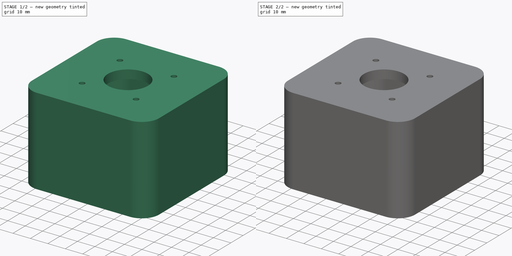
[diagram: build sequence overview — one tinted view per stage of 2, left to right]
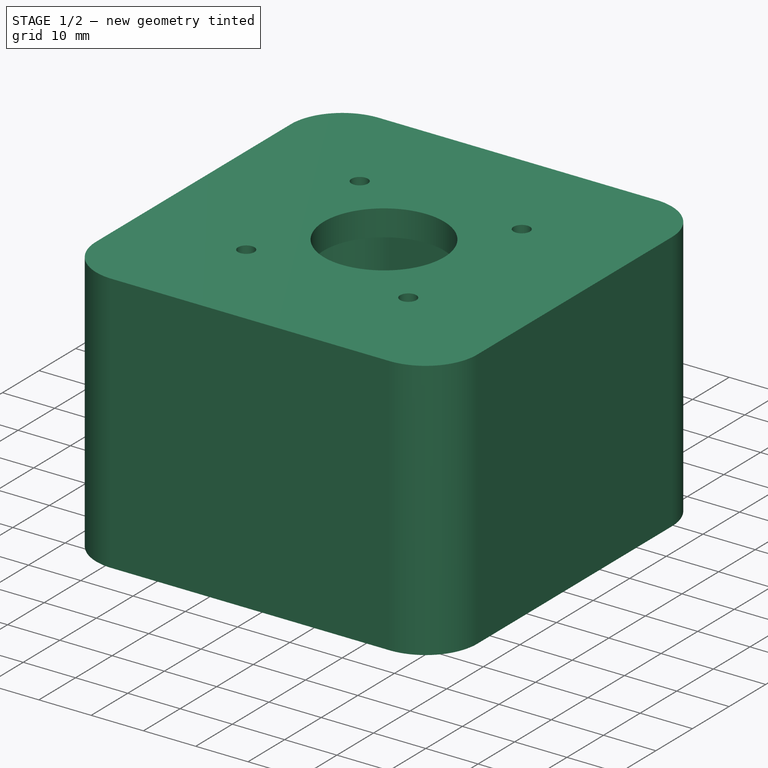
[diagram: stage 1 of 2 — iso view after this stage's code; geometry added in this stage tinted green]
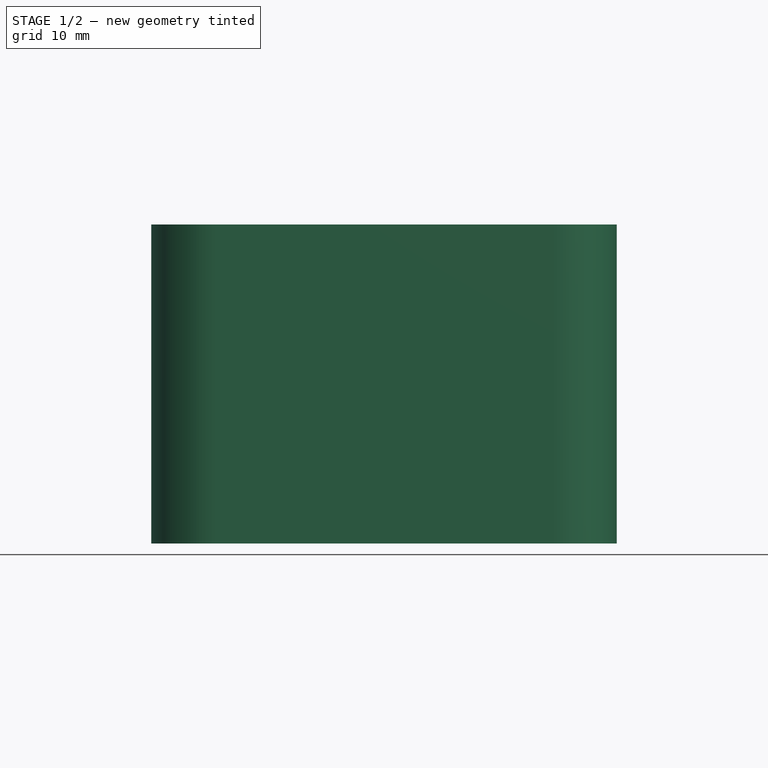
[diagram: stage 1 of 2 — front view after this stage's code; geometry added in this stage tinted green]
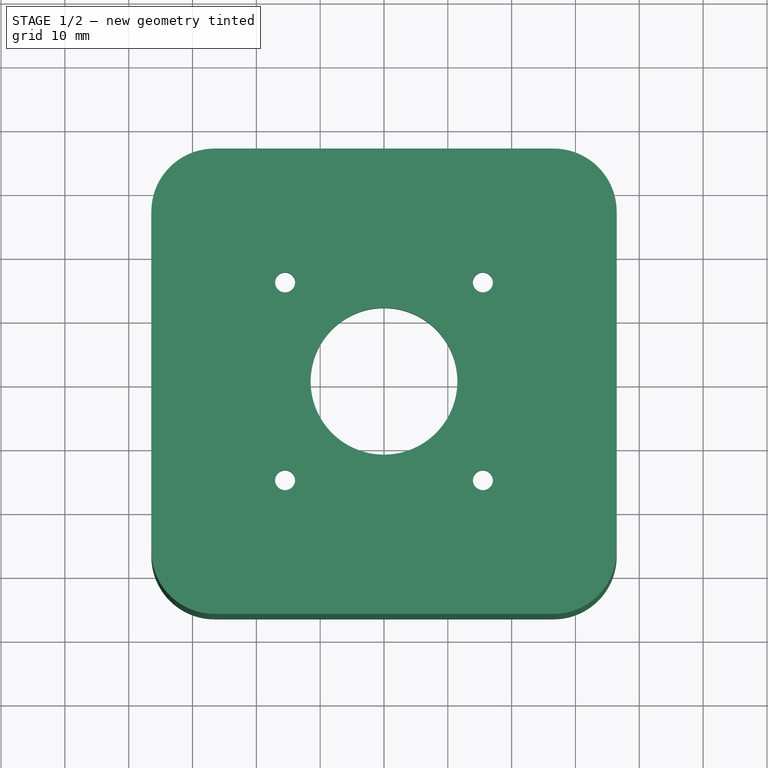
[diagram: stage 1 of 2 — top view after this stage's code; geometry added in this stage tinted green]
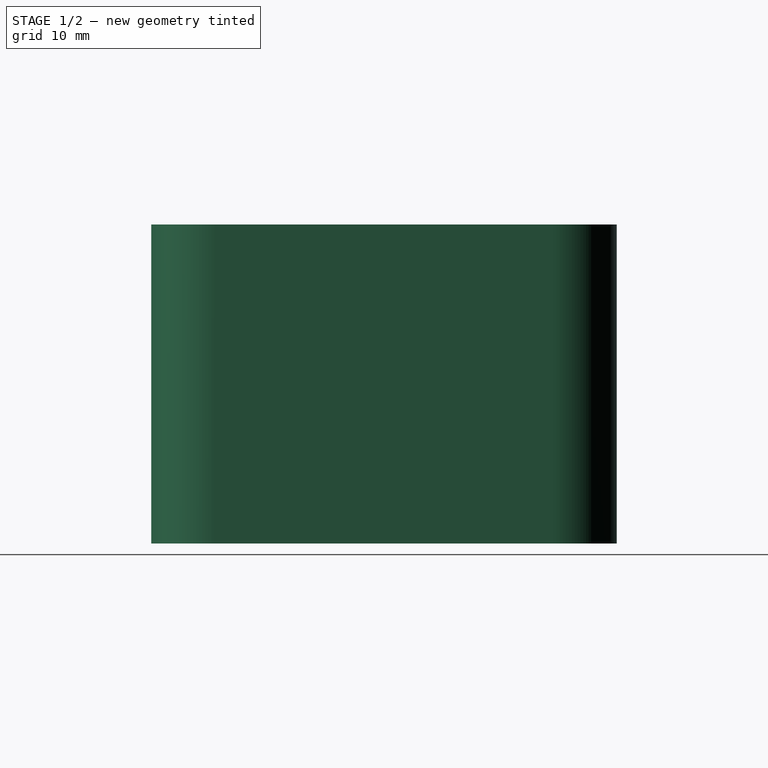
[diagram: stage 1 of 2 — right view after this stage's code; geometry added in this stage tinted green]
FCSTD DOCUMENT  (FreeCAD 0.16R)
Label: thrust_bearing_mount
License: All rights reserved
LicenseURL: http://en.wikipedia.org/wiki/All_rights_reserved
objects: Sketcher::SketchObject×3, PartDesign::Pocket×2, PartDesign::Pad×1
note: 9 computed .brp shape members not serialized (recipe doc carries the construction recipe); baked Part::Feature solids carry a one-line shape summary decoded from their .brp

FEATURE [Sketcher::SketchObject] Sketch
  sketch-geometry (17):
    g0: LineSegment StartX=-26.5555 StartY=36.46 StartZ=0 EndX=26.5555 EndY=36.46 EndZ=0
    g1: LineSegment StartX=36.46 StartY=26.5555 StartZ=0 EndX=36.46 EndY=-26.5555 EndZ=0
    g2: LineSegment StartX=26.5555 StartY=-36.46 StartZ=0 EndX=-26.5555 EndY=-36.46 EndZ=0
    g3: LineSegment StartX=-36.46 StartY=-26.5555 StartZ=0 EndX=-36.46 EndY=26.5555 EndZ=0
    g4: LineSegment [constr] StartX=-15.5 StartY=15.5 StartZ=0 EndX=15.5 EndY=15.5 EndZ=0
    g5: LineSegment [constr] StartX=15.5 StartY=15.5 StartZ=0 EndX=15.5 EndY=-15.5 EndZ=0
    g6: LineSegment [constr] StartX=15.5 StartY=-15.5 StartZ=0 EndX=-15.5 EndY=-15.5 EndZ=0
    g7: LineSegment [constr] StartX=-15.5 StartY=-15.5 StartZ=0 EndX=-15.5 EndY=15.5 EndZ=0
    g8: Circle CenterX=15.5 CenterY=15.5 CenterZ=0 NormalX=0 NormalY=0 NormalZ=1 Radius=1.56961
    g9: Circle CenterX=-15.5 CenterY=15.5 CenterZ=0 NormalX=0 NormalY=0 NormalZ=1 Radius=1.56961
    g10: Circle CenterX=15.5 CenterY=-15.5 CenterZ=0 NormalX=0 NormalY=0 NormalZ=1 Radius=1.56961
    g11: Circle CenterX=-15.5 CenterY=-15.5 CenterZ=0 NormalX=0 NormalY=0 NormalZ=1 Radius=1.56961
    g12: ArcOfCircle CenterX=-26.5555 CenterY=26.5555 CenterZ=0 NormalX=0 NormalY=0 NormalZ=1 Radius=9.90445 StartAngle=1.5708 EndAngle=3.14159
    g13: ArcOfCircle CenterX=-26.5555 CenterY=-26.5555 CenterZ=0 NormalX=0 NormalY=0 NormalZ=1 Radius=9.90445 StartAngle=3.14159 EndAngle=4.71239
    g14: ArcOfCircle CenterX=26.5555 CenterY=-26.5555 CenterZ=0 NormalX=0 NormalY=0 NormalZ=1 Radius=9.90445 StartAngle=4.71239 EndAngle=6.28319
    g15: ArcOfCircle CenterX=26.5555 CenterY=26.5555 CenterZ=0 NormalX=0 NormalY=0 NormalZ=1 Radius=9.90445 StartAngle=0 EndAngle=1.5708
    g16: Circle CenterX=0 CenterY=0 CenterZ=0 NormalX=0 NormalY=0 NormalZ=1 Radius=11.5
  constraints (37):
    c: Horizontal(g0)
    c: Horizontal(g2)
    c: Vertical(g1)
    c: Vertical(g3)
    c: Equal(g0,g1)
    c: Coincident(g4,g5)
    c: Coincident(g5,g6)
    c: Coincident(g6,g7)
    c: Coincident(g7,g4)
    c: Horizontal(g4)
    c: Horizontal(g6)
    c: Vertical(g5)
    c: Vertical(g7)
    c: Equal(g4,g5)
    c: Symmetric(g4,g6,g-1)
    c: DistanceX(g4,g4) = 31
    c: Coincident(g8,g4)
    c: Coincident(g9,g4)
    c: Coincident(g10,g5)
    c: Coincident(g11,g6)
    c: Radius(g9) = 1.56961
    c: Equal(g9,g8)
    c: Equal(g9,g10)
    c: Equal(g9,g11)
    c: Tangent(g0,g12) = 1.5708
    c: Tangent(g3,g12) = 1.5708
    c: Tangent(g2,g13) = 1.5708
    c: Tangent(g3,g13) = 1.5708
    c: Tangent(g1,g14) = 1.5708
    c: Tangent(g2,g14) = 1.5708
    c: Tangent(g0,g15) = 1.5708
    c: Tangent(g1,g15) = 1.5708
    c: Symmetric(g15,g13,g-1)
    c: Symmetric(g12,g14,g-1)
    c: Equal(g13,g14)
    c: Coincident(g16,g-1)
    c: Radius(g16) = 11.5
FEATURE [PartDesign::Pad] Pad
  Length = 50
  Length2 = 100
  Sketch = -> Sketch
  Type = 0
FEATURE [Sketcher::SketchObject] Sketch001
  Placement = pos=(0,0,0) rot=(1,0,0;3.14159rad)
  Support = -> Pad [Face14]
  sketch-geometry (8):
    g0: LineSegment StartX=-21.216 StartY=31.5906 StartZ=0 EndX=21.216 EndY=31.5906 EndZ=0
    g1: LineSegment StartX=31.5906 StartY=21.216 StartZ=0 EndX=31.5906 EndY=-21.216 EndZ=0
    g2: LineSegment StartX=21.216 StartY=-31.5906 StartZ=0 EndX=-21.216 EndY=-31.5906 EndZ=0
    g3: LineSegment StartX=-31.5906 StartY=-21.216 StartZ=0 EndX=-31.5906 EndY=21.216 EndZ=0
    g4: ArcOfCircle CenterX=-21.216 CenterY=21.216 CenterZ=0 NormalX=0 NormalY=0 NormalZ=1 Radius=10.3746 StartAngle=1.5708 EndAngle=3.14159
    g5: ArcOfCircle CenterX=21.216 CenterY=21.216 CenterZ=0 NormalX=0 NormalY=0 NormalZ=1 Radius=10.3746 StartAngle=0 EndAngle=1.5708
    g6: ArcOfCircle CenterX=21.216 CenterY=-21.216 CenterZ=0 NormalX=0 NormalY=0 NormalZ=1 Radius=10.3746 StartAngle=4.71239 EndAngle=6.28319
    g7: ArcOfCircle CenterX=-21.216 CenterY=-21.216 CenterZ=0 NormalX=0 NormalY=0 NormalZ=1 Radius=10.3746 StartAngle=3.14159 EndAngle=4.71239
  constraints (17):
    c: Horizontal(g0)
    c: Horizontal(g2)
    c: Vertical(g1)
    c: Vertical(g3)
    c: Tangent(g0,g4) = 1.5708
    c: Tangent(g3,g4) = 1.5708
    c: Tangent(g0,g5) = 1.5708
    c: Tangent(g1,g5) = 1.5708
    c: Tangent(g1,g6) = 1.5708
    c: Tangent(g2,g6) = 1.5708
    c: Tangent(g2,g7) = 1.5708
    c: Tangent(g3,g7) = 1.5708
    c: Equal(g0,g1)
    c: Equal(g5,g6)
    c: Equal(g4,g7)
    c: Equal(g4,g5)
    c: Symmetric(g5,g7,g-1)
FEATURE [PartDesign::Pocket] Pocket
  Length = 45
  Sketch = -> Sketch001
  Type = 0
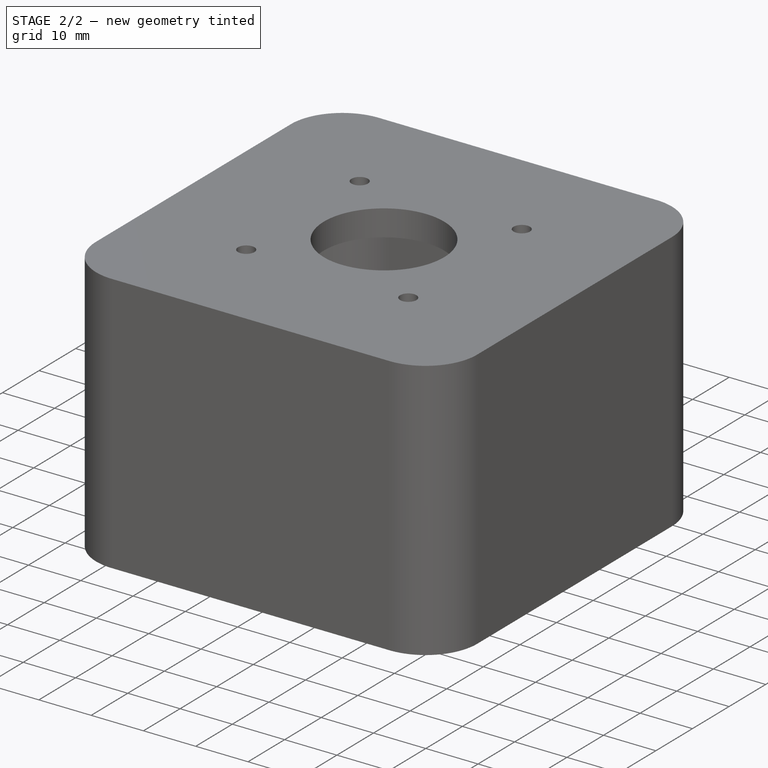
[diagram: stage 2 of 2 — iso view after this stage's code; geometry added in this stage tinted green]
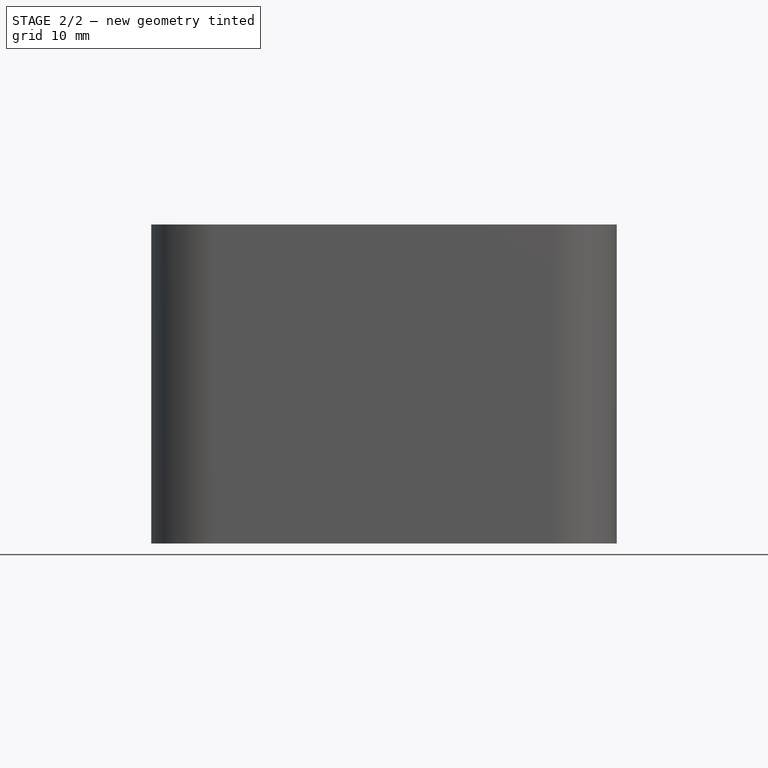
[diagram: stage 2 of 2 — front view after this stage's code; geometry added in this stage tinted green]
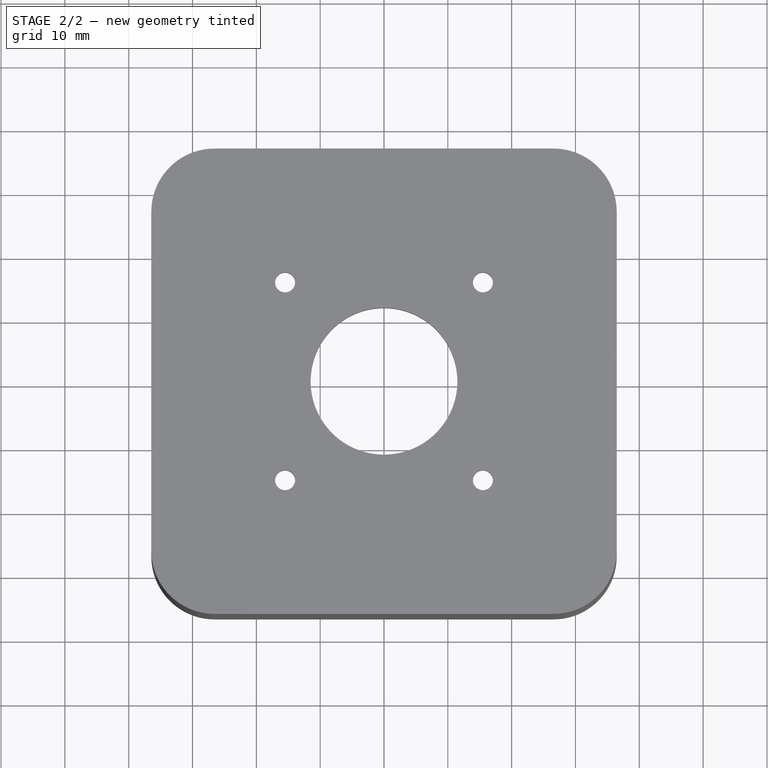
[diagram: stage 2 of 2 — top view after this stage's code; geometry added in this stage tinted green]
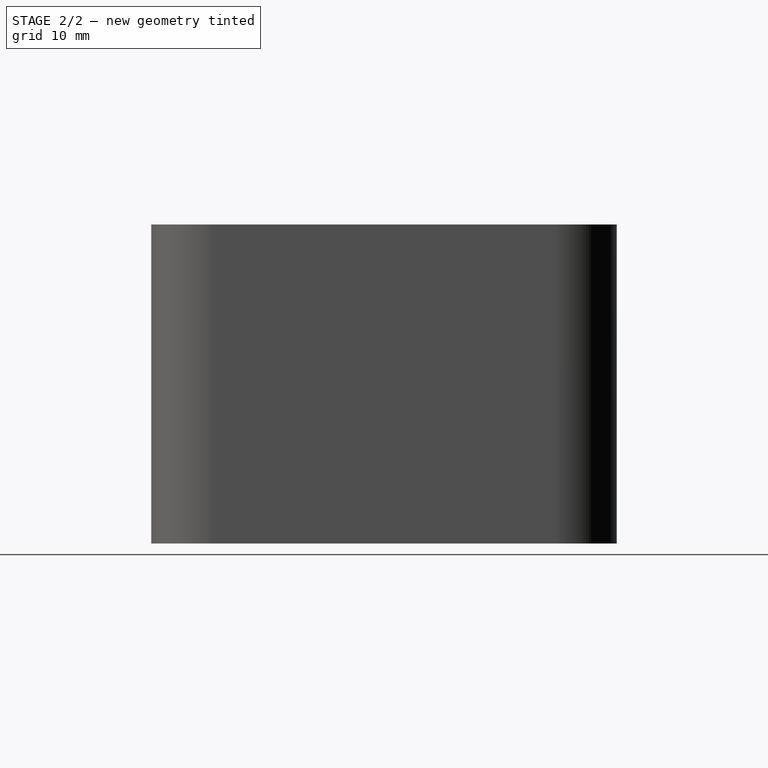
[diagram: stage 2 of 2 — right view after this stage's code; geometry added in this stage tinted green]
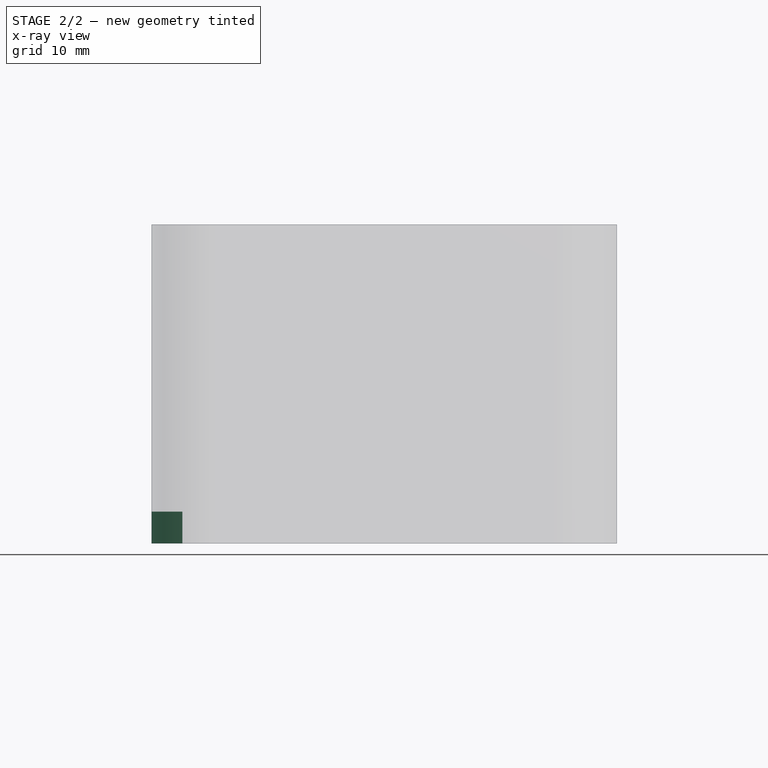
[diagram: stage 2 of 2 — x-ray composite at the front view; earlier geometry ghosted, this stage's added geometry solid]
FEATURE [Sketcher::SketchObject] Sketch002
  ExternalGeometry = -> [Pocket]
  Placement = pos=(0,0,0) rot=(1,0,0;3.14159rad)
  Support = -> Pocket [Face4]
  sketch-geometry (4):
    g0: LineSegment StartX=-36.46 StartY=3.94899 StartZ=0 EndX=-31.5906 EndY=3.94899 EndZ=0
    g1: LineSegment StartX=-31.5906 StartY=3.94899 StartZ=0 EndX=-31.5906 EndY=-4.05101 EndZ=0
    g2: LineSegment StartX=-31.5906 StartY=-4.05101 StartZ=0 EndX=-36.46 EndY=-4.05101 EndZ=0
    g3: LineSegment StartX=-36.46 StartY=-4.05101 StartZ=0 EndX=-36.46 EndY=3.94899 EndZ=0
  constraints (11):
    c: Coincident(g0,g1)
    c: Coincident(g1,g2)
    c: Coincident(g2,g3)
    c: Coincident(g3,g0)
    c: Horizontal(g0)
    c: Horizontal(g2)
    c: Vertical(g1)
    c: Vertical(g3)
    c: PointOnObject(g1,g-3)
    c: PointOnObject(g2,g-4)
    c: DistanceY(g1,g1) = 8
FEATURE [PartDesign::Pocket] Pocket001
  Length = 5
  Sketch = -> Sketch002
  Type = 0
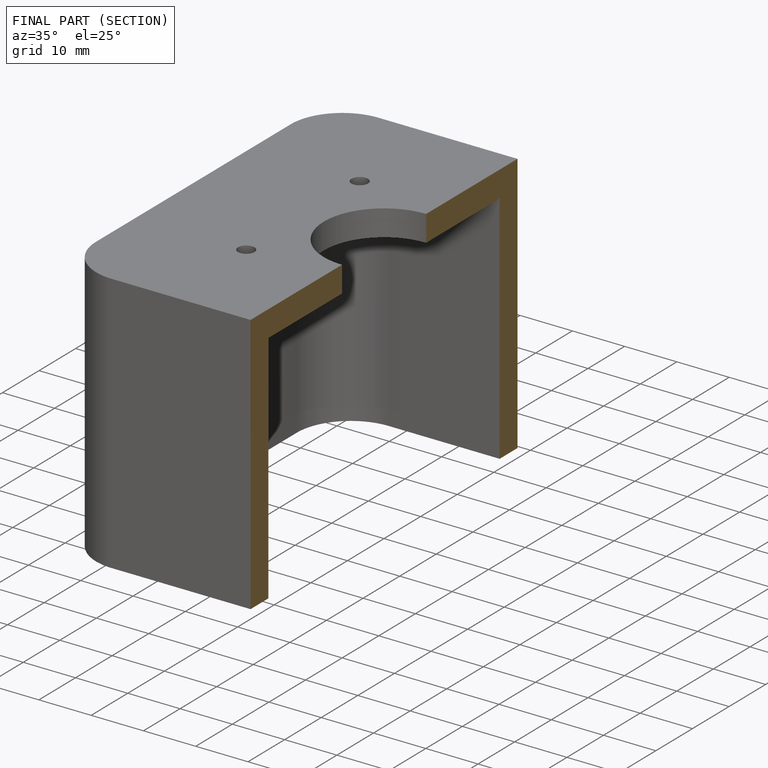
[diagram: finished part — half-section view (interior)]
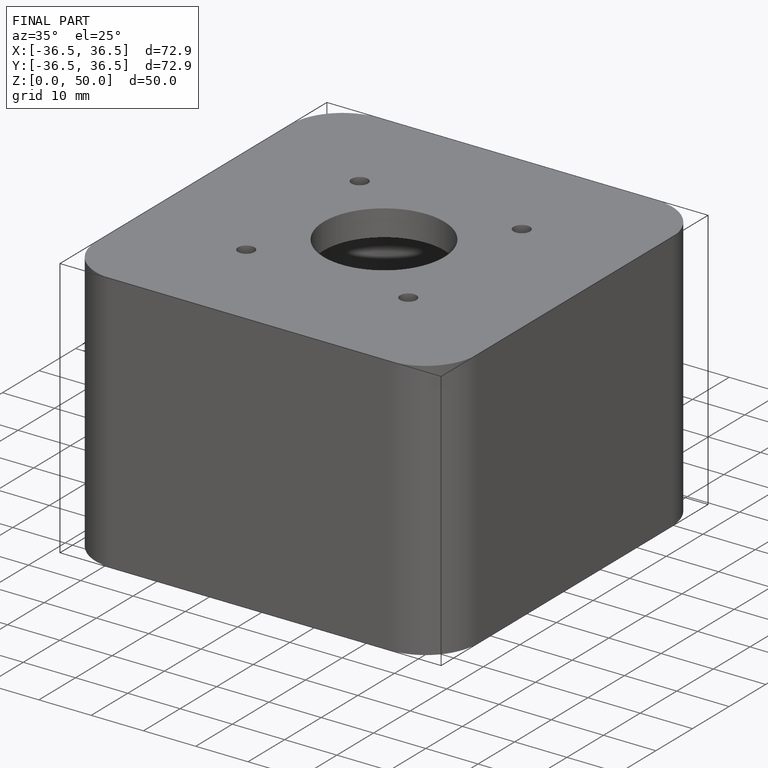
[diagram: finished part — iso view with bounding-box wireframe]
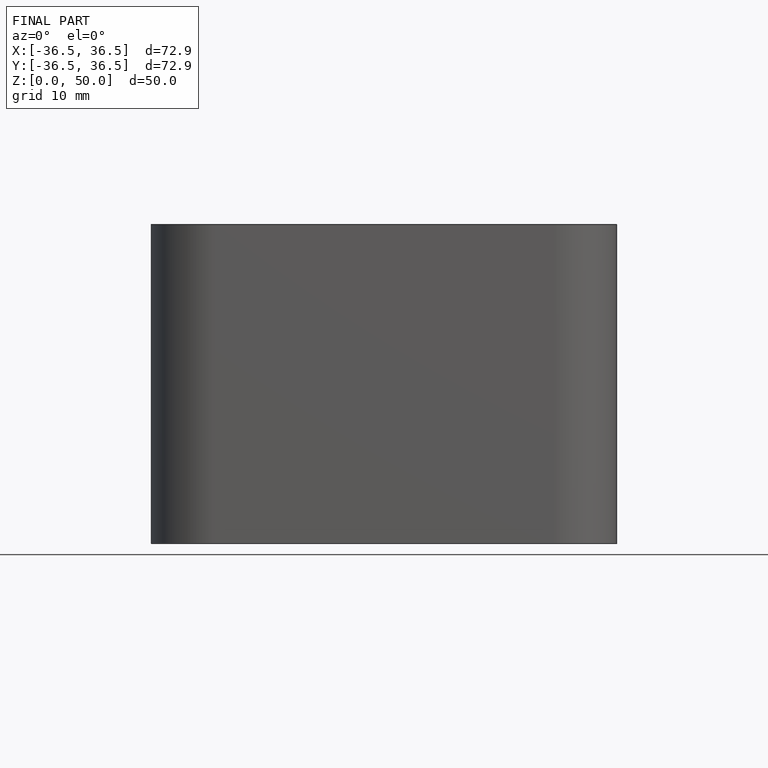
[diagram: finished part — front view with bounding-box wireframe]
